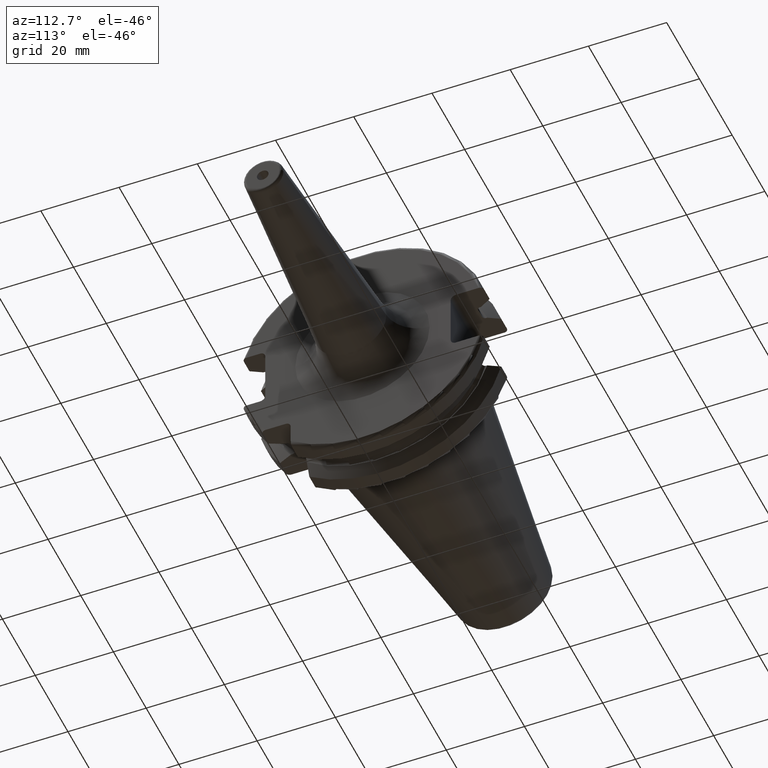
[diagram: clean part render]
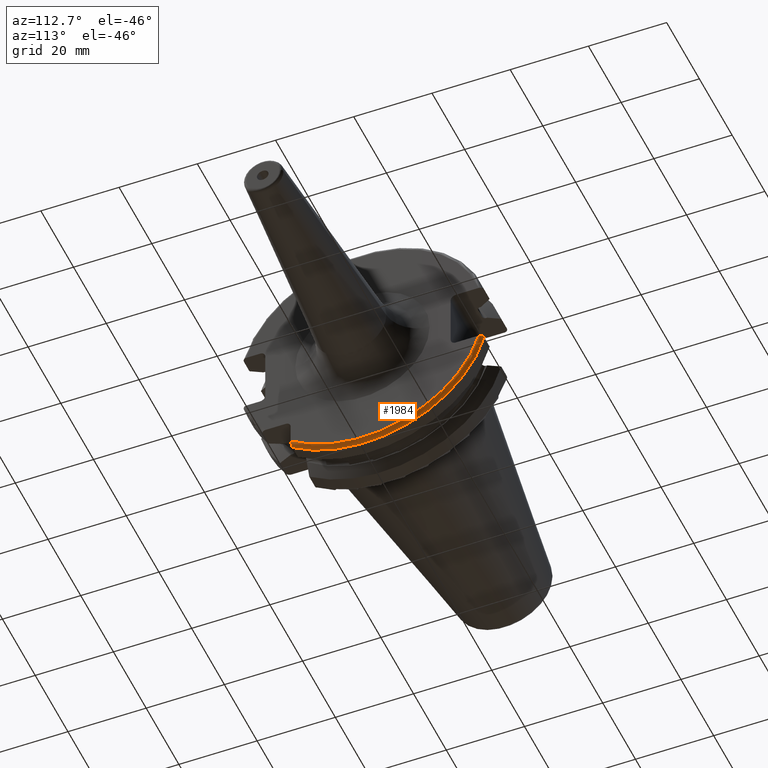
[diagram: same view with one face highlighted and labeled with its STEP entity id]
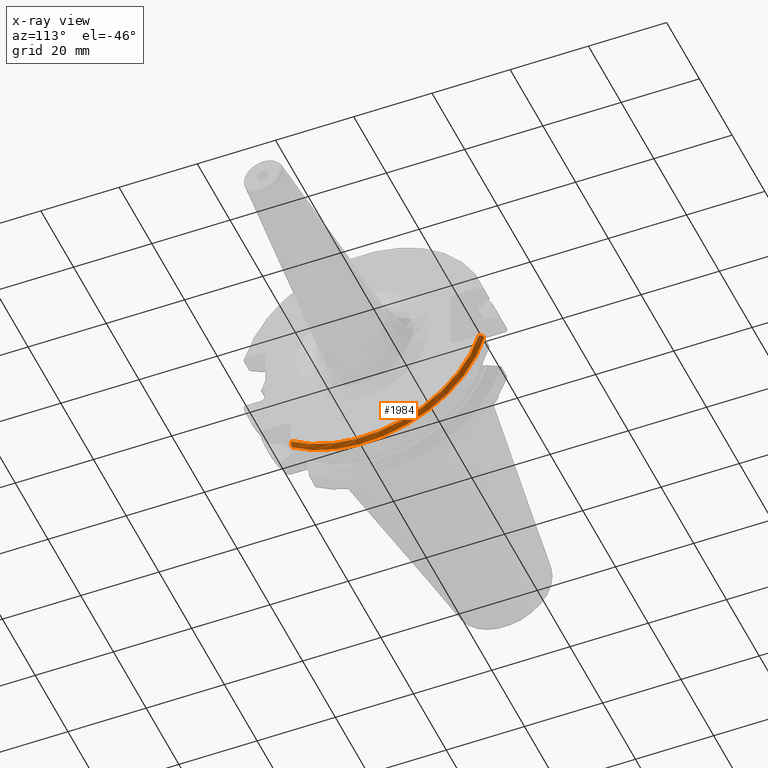
[diagram: x-ray of the same camera — body ghosted, the highlighted face saturated]
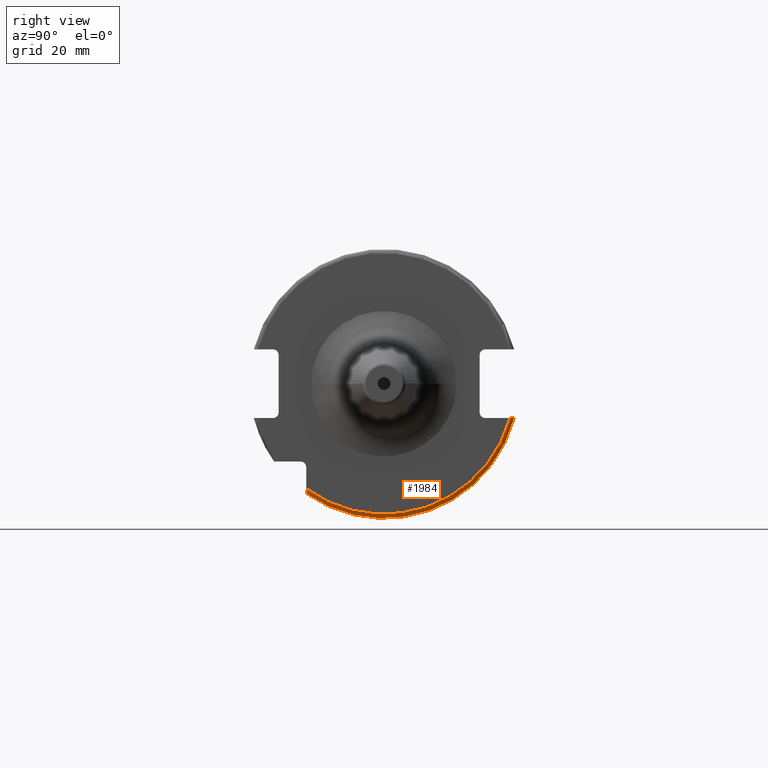
[diagram: same view with one face highlighted and labeled with its STEP entity id]
A machine part, auxiliary view. The second image highlights one B-rep face of the part: STEP entity #1984.
The next image is the same camera in x-ray: the body ghosted, the highlighted face saturated — about 0% of this face is hidden behind the body in this view.
A second angle (right view) of the same face is appended — the face is thin or edge-on in the first view.
In plain terms, the highlighted toroidal blend (fillet) surface has major radius 30.7625 mm and minor (blend) radius 1 mm.
Its self-contained STEP definition (entity closure, byte-faithful):
#314=CARTESIAN_POINT('',(1.805E1,3.071231684927E1,-8.1E0));
#315=CARTESIAN_POINT('',(1.812702529647E1,3.071231684927E1,-8.1E0));
#316=CARTESIAN_POINT('',(1.827656518037E1,3.069444719907E1,-8.1E0));
#317=CARTESIAN_POINT('',(1.849273698584E1,3.061544862934E1,-8.1E0));
#318=CARTESIAN_POINT('',(1.868460186607E1,3.048863686818E1,-8.1E0));
#319=CARTESIAN_POINT('',(1.884263679922E1,3.032251203229E1,-8.1E0));
#320=CARTESIAN_POINT('',(1.896052984725E1,3.012566774399E1,-8.1E0));
#321=CARTESIAN_POINT('',(1.903334281973E1,2.990707436768E1,-8.1E0));
#322=CARTESIAN_POINT('',(1.905E1,2.975515277820E1,-8.1E0));
#323=CARTESIAN_POINT('',(1.905E1,2.967695075728E1,-8.1E0));
#325=CARTESIAN_POINT('',(1.905E1,-1.835E1,-2.469025933946E1));
#326=CARTESIAN_POINT('',(1.905E1,-1.835E1,-2.477827489148E1));
#327=CARTESIAN_POINT('',(1.903550352933E1,-1.835E1,-2.495194722121E1));
#328=CARTESIAN_POINT('',(1.896629632127E1,-1.835E1,-2.521302960336E1));
#329=CARTESIAN_POINT('',(1.884964259244E1,-1.835E1,-2.545175760021E1));
#330=CARTESIAN_POINT('',(1.869337393206E1,-1.835E1,-2.565125079223E1));
#331=CARTESIAN_POINT('',(1.850440420446E1,-1.835E1,-2.580344847600E1));
#332=CARTESIAN_POINT('',(1.828893233655E1,-1.835E1,-2.590127687802E1));
#333=CARTESIAN_POINT('',(1.813210111876E1,-1.835E1,-2.592554543785E1));
#334=CARTESIAN_POINT('',(1.805E1,-1.835E1,-2.592554543785E1));
#336=CARTESIAN_POINT('',(1.905E1,0.E0,0.E0));
#337=DIRECTION('',(-1.E0,0.E0,0.E0));
#338=DIRECTION('',(0.E0,9.647119303464E-1,-2.633075985372E-1));
#339=AXIS2_PLACEMENT_3D('',#336,#337,#338);
#394=CARTESIAN_POINT('',(1.805E1,0.E0,0.E0));
#395=DIRECTION('',(-1.E0,0.E0,0.E0));
#396=DIRECTION('',(0.E0,9.669363825036E-1,-2.550177095632E-1));
#397=AXIS2_PLACEMENT_3D('',#394,#395,#396);
#1394=CARTESIAN_POINT('',(1.805E1,3.071231684927E1,-8.1E0));
#1395=VERTEX_POINT('',#1394);
#1407=VERTEX_POINT('',#323);
#1419=CARTESIAN_POINT('',(1.905E1,-1.835E1,-2.469025933946E1));
#1420=VERTEX_POINT('',#1419);
#1421=CARTESIAN_POINT('',(1.805E1,-1.835E1,-2.592554543785E1));
#1422=VERTEX_POINT('',#1421);
#1971=CARTESIAN_POINT('',(1.805E1,0.E0,0.E0));
#1972=DIRECTION('',(1.E0,0.E0,0.E0));
#1973=DIRECTION('',(0.E0,-1.E0,0.E0));
#1974=AXIS2_PLACEMENT_3D('',#1971,#1972,#1973);
#1975=TOROIDAL_SURFACE('',#1974,3.07625E1,1.E0);
#1976=ORIENTED_EDGE('',*,*,#1715,.F.);
#1978=ORIENTED_EDGE('',*,*,#1977,.T.);
#1980=ORIENTED_EDGE('',*,*,#1979,.F.);
#1981=ORIENTED_EDGE('',*,*,#1788,.F.);
#1982=EDGE_LOOP('',(#1976,#1978,#1980,#1981));
#1983=FACE_OUTER_BOUND('',#1982,.F.);
#1984=ADVANCED_FACE('',(#1983),#1975,.T.);
#324=B_SPLINE_CURVE_WITH_KNOTS('',3,(#314,#315,#316,#317,#318,#319,#320,#321,
#322,#323),.UNSPECIFIED.,.F.,.F.,(4,1,1,1,1,1,1,4),(0.E0,1.428571428571E-1,
2.857142857143E-1,4.285714285714E-1,5.714285714286E-1,7.142857142857E-1,
8.571428571429E-1,1.E0),.UNSPECIFIED.);
#335=B_SPLINE_CURVE_WITH_KNOTS('',3,(#325,#326,#327,#328,#329,#330,#331,#332,
#333,#334),.UNSPECIFIED.,.F.,.F.,(4,1,1,1,1,1,1,4),(0.E0,1.428571428571E-1,
2.857142857143E-1,4.285714285714E-1,5.714285714286E-1,7.142857142857E-1,
8.571428571429E-1,1.E0),.UNSPECIFIED.);
#340=CIRCLE('',#339,3.07625E1);
#398=CIRCLE('',#397,3.17625E1);
#1715=EDGE_CURVE('',#1395,#1407,#324,.T.);
#1788=EDGE_CURVE('',#1407,#1420,#340,.T.);
#1977=EDGE_CURVE('',#1395,#1422,#398,.T.);
#1979=EDGE_CURVE('',#1420,#1422,#335,.T.);